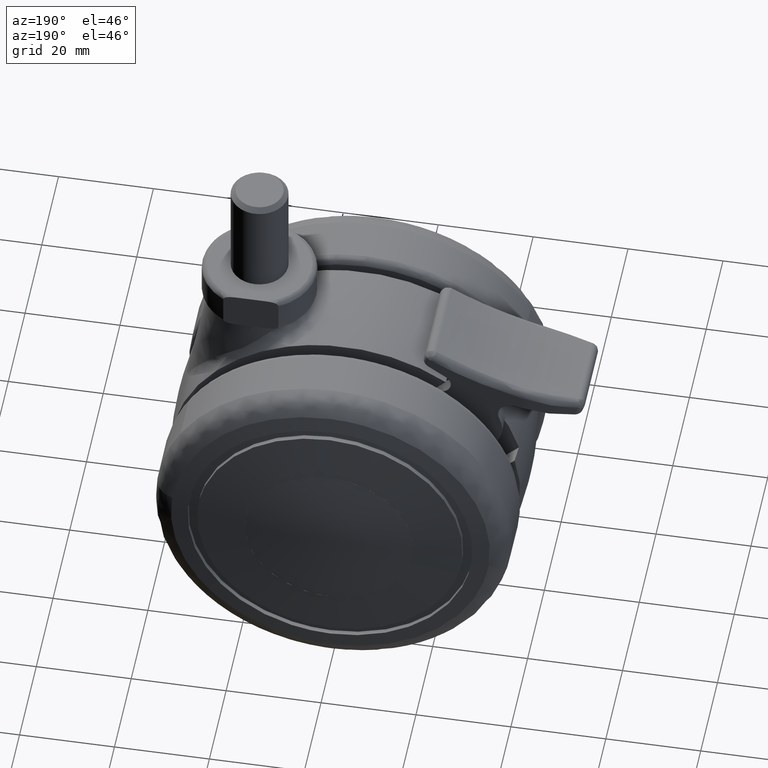
[diagram: clean part render]
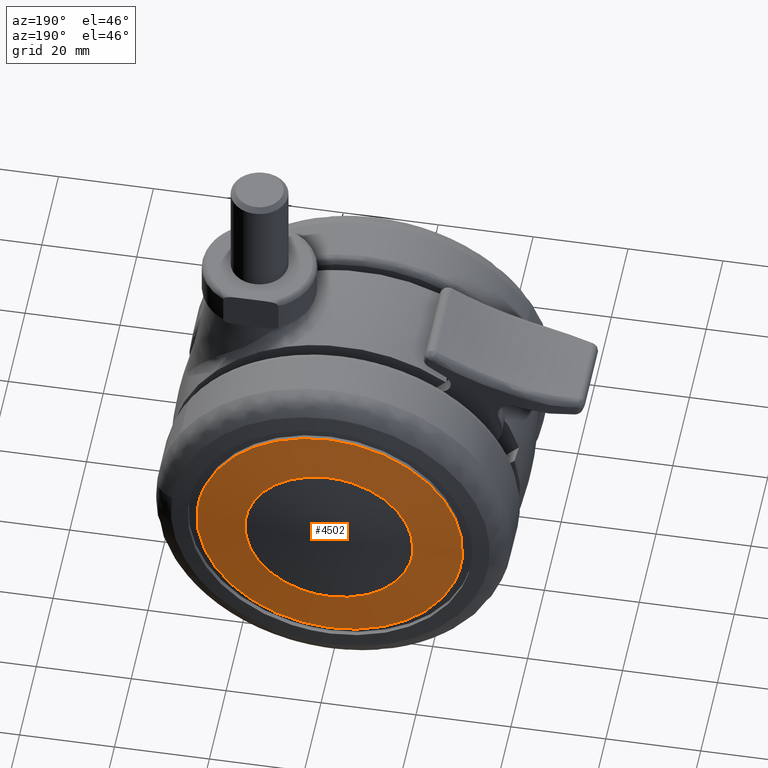
[diagram: same view with one face highlighted and labeled with its STEP entity id]
A machine part, auxiliary view. The second image highlights one B-rep face of the part: STEP entity #4502.
In plain terms, the highlighted face is a freeform B-spline surface patch.
Its self-contained STEP definition (entity closure, byte-faithful):
#3559=CARTESIAN_POINT('',(27.913688126577910,29.554418667084001,2.196819330506232));
#3560=VERTEX_POINT('',#3559);
#3566=CARTESIAN_POINT('',(0.0,29.554418667084001,28.0));
#3567=VERTEX_POINT('',#3566);
#3568=CARTESIAN_POINT('',(0.0,29.554418667084001,28.0));
#3569=CARTESIAN_POINT('',(25.882966645933159,29.554418667084001,27.999999999999989));
#3570=CARTESIAN_POINT('',(27.913688126577910,29.554418667084001,2.196819330506232));
#3578=(BOUNDED_CURVE()B_SPLINE_CURVE(2,(#3568,#3569,#3570),.UNSPECIFIED.,.F.,.U.)B_SPLINE_CURVE_WITH_KNOTS((3,3),(0.0,0.236331517724662),.UNSPECIFIED.)CURVE()GEOMETRIC_REPRESENTATION_ITEM()RATIONAL_B_SPLINE_CURVE((1.0,0.723120404266221,0.969723809226480))REPRESENTATION_ITEM(''));
#3579=EDGE_CURVE('',#3567,#3560,#3578,.T.);
#3581=CARTESIAN_POINT('',(-27.913688126577910,29.554418667084001,-2.196819330506235));
#3582=VERTEX_POINT('',#3581);
#3583=CARTESIAN_POINT('',(-27.913688126577910,29.554418667084001,-2.196819330506235));
#3584=CARTESIAN_POINT('',(-28.000000000000004,29.554418667084001,-1.100105239256448));
#3585=CARTESIAN_POINT('',(-28.0,29.554418667084001,-3.619253E-015));
#3586=CARTESIAN_POINT('',(-28.000000000000004,29.554418667084001,28.000000000000004));
#3587=CARTESIAN_POINT('',(0.0,29.554418667084001,28.0));
#3595=(BOUNDED_CURVE()B_SPLINE_CURVE(2,(#3583,#3584,#3585,#3586,#3587),.UNSPECIFIED.,.F.,.U.)B_SPLINE_CURVE_WITH_KNOTS((3,2,3),(0.736331517724662,0.750000000000000,1.0),.UNSPECIFIED.)CURVE()GEOMETRIC_REPRESENTATION_ITEM()RATIONAL_B_SPLINE_CURVE((0.969723809226480,0.983986376920326,1.0,0.707106781186547,1.0))REPRESENTATION_ITEM(''));
#3596=EDGE_CURVE('',#3582,#3567,#3595,.T.);
#3672=CARTESIAN_POINT('',(0.0,29.554418667084001,-28.0));
#3673=VERTEX_POINT('',#3672);
#3674=CARTESIAN_POINT('',(0.0,29.554418667084001,-28.0));
#3675=CARTESIAN_POINT('',(-25.882966645933159,29.554418667084001,-28.000000000000007));
#3676=CARTESIAN_POINT('',(-27.913688126577910,29.554418667084001,-2.196819330506235));
#3684=(BOUNDED_CURVE()B_SPLINE_CURVE(2,(#3674,#3675,#3676),.UNSPECIFIED.,.F.,.U.)B_SPLINE_CURVE_WITH_KNOTS((3,3),(0.500000000000000,0.736331517724662),.UNSPECIFIED.)CURVE()GEOMETRIC_REPRESENTATION_ITEM()RATIONAL_B_SPLINE_CURVE((1.0,0.723120404266221,0.969723809226480))REPRESENTATION_ITEM(''));
#3685=EDGE_CURVE('',#3673,#3582,#3684,.T.);
#3687=CARTESIAN_POINT('',(27.913688126577910,29.554418667084001,2.196819330506232));
#3688=CARTESIAN_POINT('',(28.000000000000004,29.554418667084001,1.100105239256443));
#3689=CARTESIAN_POINT('',(28.0,29.554418667084001,-3.619253E-015));
#3690=CARTESIAN_POINT('',(28.000000000000004,29.554418667084001,-28.000000000000004));
#3691=CARTESIAN_POINT('',(0.0,29.554418667084001,-28.0));
#3699=(BOUNDED_CURVE()B_SPLINE_CURVE(2,(#3687,#3688,#3689,#3690,#3691),.UNSPECIFIED.,.F.,.U.)B_SPLINE_CURVE_WITH_KNOTS((3,2,3),(0.236331517724662,0.250000000000000,0.500000000000000),.UNSPECIFIED.)CURVE()GEOMETRIC_REPRESENTATION_ITEM()RATIONAL_B_SPLINE_CURVE((0.969723809226480,0.983986376920326,1.0,0.707106781186547,1.0))REPRESENTATION_ITEM(''));
#3700=EDGE_CURVE('',#3560,#3673,#3699,.T.);
#3724=CARTESIAN_POINT('',(0.0,30.500000000000000,17.699997475913651));
#3725=VERTEX_POINT('',#3724);
#3726=CARTESIAN_POINT('',(17.645434290764761,30.500000000000000,1.388725796423676));
#3727=VERTEX_POINT('',#3726);
#3728=CARTESIAN_POINT('',(0.0,30.500000000000000,17.699997475913651));
#3729=CARTESIAN_POINT('',(16.361709368963101,30.499999999999996,17.699997475913651));
#3730=CARTESIAN_POINT('',(17.645434290764761,30.500000000000000,1.388725796423675));
#3738=(BOUNDED_CURVE()B_SPLINE_CURVE(2,(#3728,#3729,#3730),.UNSPECIFIED.,.F.,.U.)B_SPLINE_CURVE_WITH_KNOTS((3,3),(0.0,0.236331300631245),.UNSPECIFIED.)CURVE()GEOMETRIC_REPRESENTATION_ITEM()RATIONAL_B_SPLINE_CURVE((1.0,0.723120658606980,0.969723356168638))REPRESENTATION_ITEM(''));
#3739=EDGE_CURVE('',#3725,#3727,#3738,.T.);
#3780=CARTESIAN_POINT('',(-17.645434290764761,30.500000000000000,-1.388725796423681));
#3781=VERTEX_POINT('',#3780);
#3787=CARTESIAN_POINT('',(-17.645434290764761,30.500000000000000,-1.388725796423682));
#3788=CARTESIAN_POINT('',(-17.699997475913651,30.500000000000004,-0.695434794942849));
#3789=CARTESIAN_POINT('',(-17.699997475913651,30.500000000000000,-3.735049E-015));
#3790=CARTESIAN_POINT('',(-17.699997475913651,30.499999999999996,17.699997475913651));
#3791=CARTESIAN_POINT('',(0.0,30.500000000000000,17.699997475913651));
#3799=(BOUNDED_CURVE()B_SPLINE_CURVE(2,(#3787,#3788,#3789,#3790,#3791),.UNSPECIFIED.,.F.,.U.)B_SPLINE_CURVE_WITH_KNOTS((3,2,3),(0.736331300631245,0.750000000000000,1.0),.UNSPECIFIED.)CURVE()GEOMETRIC_REPRESENTATION_ITEM()RATIONAL_B_SPLINE_CURVE((0.969723356168638,0.983986122579567,1.0,0.707106781186548,1.0))REPRESENTATION_ITEM(''));
#3800=EDGE_CURVE('',#3781,#3725,#3799,.T.);
#3823=CARTESIAN_POINT('',(0.0,30.500000000000000,-17.699997475913658));
#3824=VERTEX_POINT('',#3823);
#3825=CARTESIAN_POINT('',(17.645434290764758,30.499999999999996,1.388725796423675));
#3826=CARTESIAN_POINT('',(17.699997475913651,30.500000000000000,0.695434794942839));
#3827=CARTESIAN_POINT('',(17.699997475913651,30.500000000000000,-3.735049E-015));
#3828=CARTESIAN_POINT('',(17.699997475913651,30.499999999999996,-17.699997475913651));
#3829=CARTESIAN_POINT('',(0.0,30.500000000000000,-17.699997475913658));
#3837=(BOUNDED_CURVE()B_SPLINE_CURVE(2,(#3825,#3826,#3827,#3828,#3829),.UNSPECIFIED.,.F.,.U.)B_SPLINE_CURVE_WITH_KNOTS((3,2,3),(0.236331300631245,0.250000000000000,0.500000000000000),.UNSPECIFIED.)CURVE()GEOMETRIC_REPRESENTATION_ITEM()RATIONAL_B_SPLINE_CURVE((0.969723356168638,0.983986122579567,1.0,0.707106781186548,1.0))REPRESENTATION_ITEM(''));
#3838=EDGE_CURVE('',#3727,#3824,#3837,.T.);
#3840=CARTESIAN_POINT('',(0.0,30.500000000000000,-17.699997475913658));
#3841=CARTESIAN_POINT('',(-16.361709368963144,30.500000000000000,-17.699997475913655));
#3842=CARTESIAN_POINT('',(-17.645434290764758,30.500000000000004,-1.388725796423681));
#3850=(BOUNDED_CURVE()B_SPLINE_CURVE(2,(#3840,#3841,#3842),.UNSPECIFIED.,.F.,.U.)B_SPLINE_CURVE_WITH_KNOTS((3,3),(0.500000000000000,0.736331300631245),.UNSPECIFIED.)CURVE()GEOMETRIC_REPRESENTATION_ITEM()RATIONAL_B_SPLINE_CURVE((1.0,0.723120658606980,0.969723356168640))REPRESENTATION_ITEM(''));
#3851=EDGE_CURVE('',#3824,#3781,#3850,.T.);
#4466=CARTESIAN_POINT('',(-30.651831809175000,27.339488585132397,30.660339060257677));
#4467=CARTESIAN_POINT('',(-15.384173110625749,29.225700931972938,30.776885810282696));
#4468=CARTESIAN_POINT('',(15.384172445013288,29.225700931972938,30.776885810282696));
#4469=CARTESIAN_POINT('',(30.651830493035195,27.339488747732283,30.660339070304538));
#4470=CARTESIAN_POINT('',(-30.768411152142335,29.226752076167944,15.388475379597358));
#4471=CARTESIAN_POINT('',(-15.442907617441280,31.127366999999879,15.447193713403390));
#4472=CARTESIAN_POINT('',(15.442906949287609,31.127366999999879,15.447193713403390));
#4473=CARTESIAN_POINT('',(30.768409831035150,29.226752240007016,15.388475384659072));
#4474=CARTESIAN_POINT('',(-30.768411152142335,29.226752076167944,-15.388478615481274));
#4475=CARTESIAN_POINT('',(-15.442907617441280,31.127366999999879,-15.447196961634580));
#4476=CARTESIAN_POINT('',(15.442906949287609,31.127366999999879,-15.447196961634580));
#4477=CARTESIAN_POINT('',(30.768409831035150,29.226752240007016,-15.388478620542990));
#4478=CARTESIAN_POINT('',(-30.651831760332218,27.339487794433236,-30.660345458648067));
#4479=CARTESIAN_POINT('',(-15.384173086018345,29.225700135251095,-30.776892232808382));
#4480=CARTESIAN_POINT('',(15.384172420405884,29.225700135251095,-30.776892232808382));
#4481=CARTESIAN_POINT('',(30.651830444192381,27.339487957033079,-30.660345468694899));
#4489=(BOUNDED_SURFACE()B_SPLINE_SURFACE(2,2,((#4466,#4470,#4474,#4478),(#4467,#4471,#4475,#4479),(#4468,#4472,#4476,#4480),(#4469,#4473,#4477,#4481)),.UNSPECIFIED.,.F.,.F.,.U.)B_SPLINE_SURFACE_WITH_KNOTS((3,1,3),(3,1,3),(82.367243965911868,112.451119120043600,142.534992972564710),(82.358894348144531,112.451119120043600,142.543350219726590),.UNSPECIFIED.)GEOMETRIC_REPRESENTATION_ITEM()RATIONAL_B_SPLINE_SURFACE(((1.007633587028804,1.003815734330893,1.003815734330893,1.007633588634438),(1.003817852697911,1.0,1.0,1.003817854303545),(1.003817852697911,1.0,1.0,1.003817854303545),(1.007633586698620,1.003815734000709,1.003815734000709,1.007633588304255)))REPRESENTATION_ITEM('')SURFACE());
#4490=ORIENTED_EDGE('',*,*,#3579,.T.);
#4491=ORIENTED_EDGE('',*,*,#3700,.T.);
#4492=ORIENTED_EDGE('',*,*,#3685,.T.);
#4493=ORIENTED_EDGE('',*,*,#3596,.T.);
#4494=EDGE_LOOP('',(#4490,#4491,#4492,#4493));
#4495=FACE_OUTER_BOUND('',#4494,.T.);
#4496=ORIENTED_EDGE('',*,*,#3851,.F.);
#4497=ORIENTED_EDGE('',*,*,#3838,.F.);
#4498=ORIENTED_EDGE('',*,*,#3739,.F.);
#4499=ORIENTED_EDGE('',*,*,#3800,.F.);
#4500=EDGE_LOOP('',(#4496,#4497,#4498,#4499));
#4501=FACE_BOUND('',#4500,.T.);
#4502=ADVANCED_FACE('',(#4495,#4501),#4489,.T.);